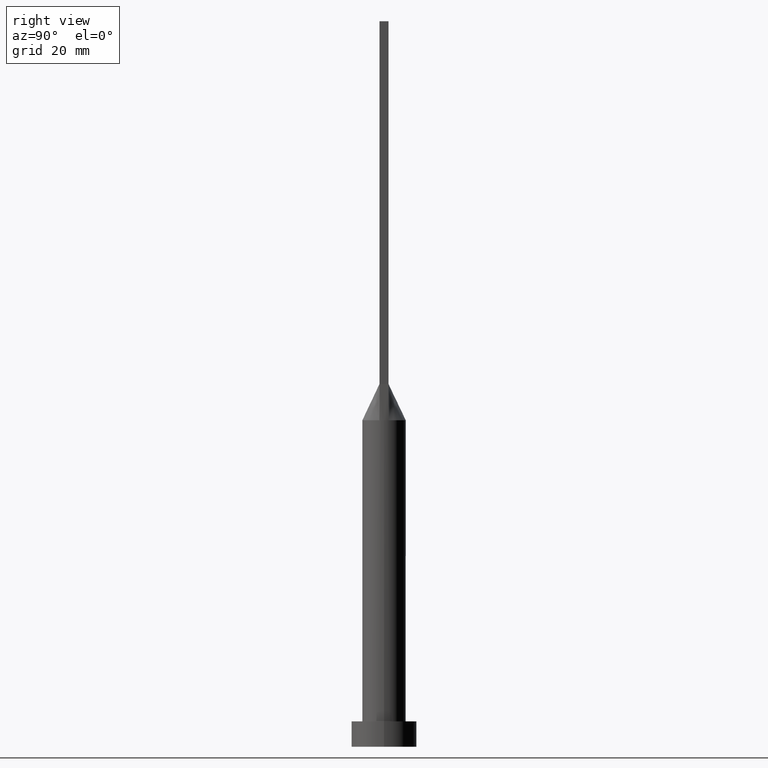
[diagram: clean part render]
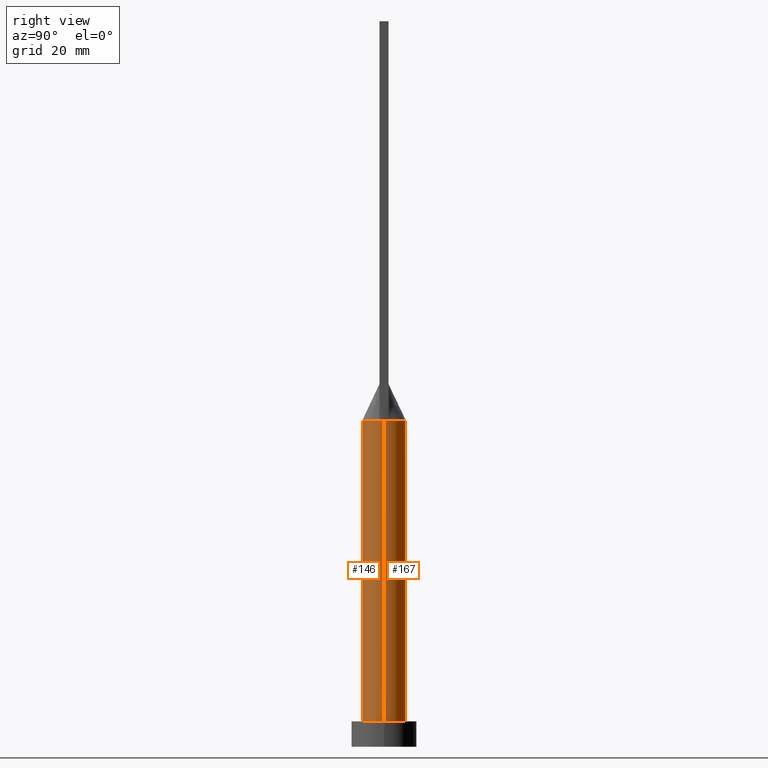
[diagram: same view with one multi-face feature highlighted, each face labeled with its STEP entity id]
A machine part, right view. The highlighted faces form ONE feature: a constant-radius fillet chain: 2 tangent blend faces with common blend radius 6 mm. The faces share edges in the B-rep.
Their STEP definitions:
[1] entity #146 (Cylinder):
#27 = VECTOR ( 'NONE', #119, 1000.000000000000000 ) ;
#31 = CARTESIAN_POINT ( 'NONE',  ( -6.000000000000000888, 0.000000000000000000, 7.000000000000000000 ) ) ;
#33 = DIRECTION ( 'NONE',  ( 1.000000000000000000, 0.000000000000000000, 0.000000000000000000 ) ) ;
#57 = VERTEX_POINT ( 'NONE', #31 ) ;
#60 = ORIENTED_EDGE ( 'NONE', *, *, #367, .F. ) ;
#70 = EDGE_CURVE ( 'NONE', #568, #57, #304, .T. ) ;
#87 = DIRECTION ( 'NONE',  ( -1.000000000000000000, 0.000000000000000000, 0.000000000000000000 ) ) ;
#88 = ORIENTED_EDGE ( 'NONE', *, *, #421, .F. ) ;
#93 = CIRCLE ( 'NONE', #442, 6.000000000000000888 ) ;
#98 = VERTEX_POINT ( 'NONE', #354 ) ;
#119 = DIRECTION ( 'NONE',  ( -0.000000000000000000, -0.000000000000000000, -1.000000000000000000 ) ) ;
#124 = DIRECTION ( 'NONE',  ( 0.000000000000000000, 0.000000000000000000, 1.000000000000000000 ) ) ;
#126 = DIRECTION ( 'NONE',  ( 0.000000000000000000, 0.000000000000000000, 1.000000000000000000 ) ) ;
#129 = CIRCLE ( 'NONE', #474, 6.000000000000000888 ) ;
#146 = ADVANCED_FACE ( 'NONE', ( #508 ), #547, .T. ) ;
#156 = CARTESIAN_POINT ( 'NONE',  ( -6.000000000000000888, 0.000000000000000000, 90.00000000000001421 ) ) ;
#171 = CIRCLE ( 'NONE', #501, 6.000000000000000888 ) ;
#176 = DIRECTION ( 'NONE',  ( 1.000000000000000000, -9.769962616701377556E-15, 0.000000000000000000 ) ) ;
#186 = CARTESIAN_POINT ( 'NONE',  ( 6.000000000000000888, 7.347880794884120722E-16, 7.000000000000000000 ) ) ;
#187 = ORIENTED_EDGE ( 'NONE', *, *, #581, .F. ) ;
#190 = VECTOR ( 'NONE', #346, 1000.000000000000000 ) ;
#191 = CIRCLE ( 'NONE', #532, 6.000000000000000888 ) ;
#193 = ORIENTED_EDGE ( 'NONE', *, *, #70, .T. ) ;
#250 = ORIENTED_EDGE ( 'NONE', *, *, #275, .F. ) ;
#253 = VERTEX_POINT ( 'NONE', #186 ) ;
#262 = DIRECTION ( 'NONE',  ( 1.000000000000000000, 0.000000000000000000, 0.000000000000000000 ) ) ;
#264 = CARTESIAN_POINT ( 'NONE',  ( 0.000000000000000000, 0.000000000000000000, 90.00000000000001421 ) ) ;
#269 = CARTESIAN_POINT ( 'NONE',  ( -6.000000000000000888, -3.688698462745542764E-16, 90.00000000000000000 ) ) ;
#275 = EDGE_CURVE ( 'NONE', #516, #98, #93, .T. ) ;
#280 = DIRECTION ( 'NONE',  ( 0.000000000000000000, 0.000000000000000000, 1.000000000000000000 ) ) ;
#304 = LINE ( 'NONE', #156, #190 ) ;
#305 = CARTESIAN_POINT ( 'NONE',  ( 6.000000000000000888, 6.923844231069229210E-17, 90.00000000000000000 ) ) ;
#346 = DIRECTION ( 'NONE',  ( -0.000000000000000000, -0.000000000000000000, -1.000000000000000000 ) ) ;
#353 = LINE ( 'NONE', #538, #27 ) ;
#354 = CARTESIAN_POINT ( 'NONE',  ( 5.863058287509796074, -1.274577880478293901, 90.00000000000001421 ) ) ;
#367 = EDGE_CURVE ( 'NONE', #372, #253, #353, .T. ) ;
#372 = VERTEX_POINT ( 'NONE', #305 ) ;
#374 = CARTESIAN_POINT ( 'NONE',  ( 0.000000000000000000, 0.000000000000000000, 90.00000000000001421 ) ) ;
#381 = ORIENTED_EDGE ( 'NONE', *, *, #493, .T. ) ;
#421 = EDGE_CURVE ( 'NONE', #568, #516, #171, .T. ) ;
#429 = DIRECTION ( 'NONE',  ( 1.000000000000000000, 0.000000000000000000, 0.000000000000000000 ) ) ;
#442 = AXIS2_PLACEMENT_3D ( 'NONE', #374, #280, #429 ) ;
#449 = CARTESIAN_POINT ( 'NONE',  ( 0.000000000000000000, 0.000000000000000000, 7.000000000000000000 ) ) ;
#461 = DIRECTION ( 'NONE',  ( 0.000000000000000000, 0.000000000000000000, 1.000000000000000000 ) ) ;
#462 = DIRECTION ( 'NONE',  ( -0.000000000000000000, -0.000000000000000000, -1.000000000000000000 ) ) ;
#474 = AXIS2_PLACEMENT_3D ( 'NONE', #264, #126, #176 ) ;
#478 = EDGE_LOOP ( 'NONE', ( #60, #187, #250, #88, #193, #381 ) ) ;
#493 = EDGE_CURVE ( 'NONE', #57, #253, #191, .T. ) ;
#501 = AXIS2_PLACEMENT_3D ( 'NONE', #542, #461, #33 ) ;
#504 = CARTESIAN_POINT ( 'NONE',  ( 0.000000000000000000, 0.000000000000000000, 90.00000000000001421 ) ) ;
#508 = FACE_OUTER_BOUND ( 'NONE', #478, .T. ) ;
#516 = VERTEX_POINT ( 'NONE', #590 ) ;
#532 = AXIS2_PLACEMENT_3D ( 'NONE', #449, #124, #262 ) ;
#538 = CARTESIAN_POINT ( 'NONE',  ( 6.000000000000000888, 7.347880794884120722E-16, 90.00000000000001421 ) ) ;
#542 = CARTESIAN_POINT ( 'NONE',  ( 0.000000000000000000, 0.000000000000000000, 90.00000000000001421 ) ) ;
#547 = CYLINDRICAL_SURFACE ( 'NONE', #598, 6.000000000000000888 ) ;
#568 = VERTEX_POINT ( 'NONE', #269 ) ;
#581 = EDGE_CURVE ( 'NONE', #98, #372, #129, .T. ) ;
#590 = CARTESIAN_POINT ( 'NONE',  ( -5.863065408737084816, -1.274579424051652365, 90.00000000000001421 ) ) ;
#598 = AXIS2_PLACEMENT_3D ( 'NONE', #504, #462, #87 ) ;
[2] entity #167 (Cylinder):
#11 = ORIENTED_EDGE ( 'NONE', *, *, #530, .F. ) ;
#21 = CARTESIAN_POINT ( 'NONE',  ( 3.037647739454305995, 5.231880992812856235, 90.00000000000002842 ) ) ;
#26 = CARTESIAN_POINT ( 'NONE',  ( 5.038190104264874236, 3.311355329404293002, 90.00000000000004263 ) ) ;
#27 = VECTOR ( 'NONE', #119, 1000.000000000000000 ) ;
#31 = CARTESIAN_POINT ( 'NONE',  ( -6.000000000000000888, 0.000000000000000000, 7.000000000000000000 ) ) ;
#37 = CARTESIAN_POINT ( 'NONE',  ( -0.4029827085191223790, 5.999999999999998224, 90.00000000000002842 ) ) ;
#39 = DIRECTION ( 'NONE',  ( 0.000000000000000000, 0.000000000000000000, 1.000000000000000000 ) ) ;
#42 = CARTESIAN_POINT ( 'NONE',  ( -5.759267569818392829, 1.752014689090956256, 90.00000000000002842 ) ) ;
#43 = VERTEX_POINT ( 'NONE', #543 ) ;
#46 = CYLINDRICAL_SURFACE ( 'NONE', #121, 6.000000000000000888 ) ;
#51 = DIRECTION ( 'NONE',  ( 1.000000000000000000, 0.000000000000000000, 0.000000000000000000 ) ) ;
#57 = VERTEX_POINT ( 'NONE', #31 ) ;
#70 = EDGE_CURVE ( 'NONE', #568, #57, #304, .T. ) ;
#77 = CARTESIAN_POINT ( 'NONE',  ( 5.863058183536806744, 1.274577865986262326, 90.00000000000001421 ) ) ;
#79 = CARTESIAN_POINT ( 'NONE',  ( 5.586898165904734093, 2.266054396544147309, 90.00000000000002842 ) ) ;
#85 = CARTESIAN_POINT ( 'NONE',  ( 0.000000000000000000, 0.000000000000000000, 90.00000000000001421 ) ) ;
#90 = DIRECTION ( 'NONE',  ( -0.000000000000000000, -0.000000000000000000, -1.000000000000000000 ) ) ;
#97 = CARTESIAN_POINT ( 'NONE',  ( 0.000000000000000000, 0.000000000000000000, 90.00000000000001421 ) ) ;
#108 = EDGE_CURVE ( 'NONE', #43, #540, #168, .T. ) ;
#109 = ORIENTED_EDGE ( 'NONE', *, *, #70, .F. ) ;
#119 = DIRECTION ( 'NONE',  ( -0.000000000000000000, -0.000000000000000000, -1.000000000000000000 ) ) ;
#121 = AXIS2_PLACEMENT_3D ( 'NONE', #85, #90, #270 ) ;
#140 = EDGE_LOOP ( 'NONE', ( #11, #325, #292, #109, #391, #272 ) ) ;
#156 = CARTESIAN_POINT ( 'NONE',  ( -6.000000000000000888, 0.000000000000000000, 90.00000000000001421 ) ) ;
#159 = AXIS2_PLACEMENT_3D ( 'NONE', #172, #406, #551 ) ;
#167 = ADVANCED_FACE ( 'NONE', ( #545 ), #46, .T. ) ;
#168 = B_SPLINE_CURVE_WITH_KNOTS ( 'NONE', 3,
 ( #77, #255, #79, #26, #539, #263, #21, #537, #306, #206, #265, #37, #225, #453, #218, #369, #412, #312, #271, #459, #42, #174 ),
 .UNSPECIFIED., .F., .F.,
 ( 4, 2, 2, 2, 2, 2, 2, 2, 2, 2, 4 ),
 ( 0.000000000000000000, 0.1249999999999999722, 0.2499999999999999445, 0.3749999999999999445, 0.4374999999999999445, 0.4999999999999998890, 0.5624999999999998890, 0.6249999999999998890, 0.7499999999999997780, 0.8749999999999998890, 1.000000000000000000 ),
 .UNSPECIFIED. ) ;
#172 = CARTESIAN_POINT ( 'NONE',  ( 0.000000000000000000, 0.000000000000000000, 90.00000000000001421 ) ) ;
#174 = CARTESIAN_POINT ( 'NONE',  ( -5.863058287509749888, 1.274577880478287017, 90.00000000000001421 ) ) ;
#186 = CARTESIAN_POINT ( 'NONE',  ( 6.000000000000000888, 7.347880794884120722E-16, 7.000000000000000000 ) ) ;
#190 = VECTOR ( 'NONE', #346, 1000.000000000000000 ) ;
#206 = CARTESIAN_POINT ( 'NONE',  ( 0.8058840496048939039, 5.959001506938069070, 90.00000000000002842 ) ) ;
#218 = CARTESIAN_POINT ( 'NONE',  ( -1.966519853258818173, 5.681792876789067748, 90.00000000000001421 ) ) ;
#222 = EDGE_CURVE ( 'NONE', #540, #568, #589, .T. ) ;
#225 = CARTESIAN_POINT ( 'NONE',  ( -0.8058840496048931268, 5.959001506938069070, 90.00000000000001421 ) ) ;
#253 = VERTEX_POINT ( 'NONE', #186 ) ;
#255 = CARTESIAN_POINT ( 'NONE',  ( 5.759267569818392829, 1.752014689090955590, 90.00000000000002842 ) ) ;
#263 = CARTESIAN_POINT ( 'NONE',  ( 3.660567483996337579, 4.804269179125218336, 90.00000000000002842 ) ) ;
#265 = CARTESIAN_POINT ( 'NONE',  ( 0.4029827085191226566, 5.999999999999999112, 90.00000000000002842 ) ) ;
#267 = CIRCLE ( 'NONE', #159, 6.000000000000000888 ) ;
#269 = CARTESIAN_POINT ( 'NONE',  ( -6.000000000000000888, -3.688698462745542764E-16, 90.00000000000000000 ) ) ;
#270 = DIRECTION ( 'NONE',  ( -1.000000000000000000, 0.000000000000000000, 0.000000000000000000 ) ) ;
#271 = CARTESIAN_POINT ( 'NONE',  ( -5.038190104264874236, 3.311355329404293446, 90.00000000000001421 ) ) ;
#272 = ORIENTED_EDGE ( 'NONE', *, *, #108, .F. ) ;
#277 = AXIS2_PLACEMENT_3D ( 'NONE', #97, #340, #51 ) ;
#292 = ORIENTED_EDGE ( 'NONE', *, *, #440, .T. ) ;
#304 = LINE ( 'NONE', #156, #190 ) ;
#305 = CARTESIAN_POINT ( 'NONE',  ( 6.000000000000000888, 6.923844231069229210E-17, 90.00000000000000000 ) ) ;
#306 = CARTESIAN_POINT ( 'NONE',  ( 1.587717880441007479, 5.799853445840305710, 90.00000000000000000 ) ) ;
#309 = DIRECTION ( 'NONE',  ( 1.000000000000000000, 0.000000000000000000, 0.000000000000000000 ) ) ;
#312 = CARTESIAN_POINT ( 'NONE',  ( -4.659826596530312948, 3.842755878357679844, 90.00000000000001421 ) ) ;
#316 = AXIS2_PLACEMENT_3D ( 'NONE', #546, #39, #309 ) ;
#325 = ORIENTED_EDGE ( 'NONE', *, *, #367, .T. ) ;
#340 = DIRECTION ( 'NONE',  ( 0.000000000000000000, 0.000000000000000000, 1.000000000000000000 ) ) ;
#346 = DIRECTION ( 'NONE',  ( -0.000000000000000000, -0.000000000000000000, -1.000000000000000000 ) ) ;
#353 = LINE ( 'NONE', #538, #27 ) ;
#367 = EDGE_CURVE ( 'NONE', #372, #253, #353, .T. ) ;
#369 = CARTESIAN_POINT ( 'NONE',  ( -3.037647739454304663, 5.231880992812857123, 90.00000000000007105 ) ) ;
#372 = VERTEX_POINT ( 'NONE', #305 ) ;
#391 = ORIENTED_EDGE ( 'NONE', *, *, #222, .F. ) ;
#406 = DIRECTION ( 'NONE',  ( 0.000000000000000000, 0.000000000000000000, 1.000000000000000000 ) ) ;
#412 = CARTESIAN_POINT ( 'NONE',  ( -3.660567483996338023, 4.804269179125219225, 90.00000000000005684 ) ) ;
#424 = CIRCLE ( 'NONE', #316, 6.000000000000000888 ) ;
#440 = EDGE_CURVE ( 'NONE', #253, #57, #424, .T. ) ;
#453 = CARTESIAN_POINT ( 'NONE',  ( -1.587717880441007035, 5.799853445840308375, 90.00000000000001421 ) ) ;
#459 = CARTESIAN_POINT ( 'NONE',  ( -5.586898165904732316, 2.266054396544148197, 90.00000000000002842 ) ) ;
#530 = EDGE_CURVE ( 'NONE', #372, #43, #267, .T. ) ;
#537 = CARTESIAN_POINT ( 'NONE',  ( 1.966519853258819062, 5.681792876789066860, 90.00000000000002842 ) ) ;
#538 = CARTESIAN_POINT ( 'NONE',  ( 6.000000000000000888, 7.347880794884120722E-16, 90.00000000000001421 ) ) ;
#539 = CARTESIAN_POINT ( 'NONE',  ( 4.659826596530313836, 3.842755878357678068, 90.00000000000002842 ) ) ;
#540 = VERTEX_POINT ( 'NONE', #592 ) ;
#543 = CARTESIAN_POINT ( 'NONE',  ( 5.863058183536806744, 1.274577865986262326, 90.00000000000001421 ) ) ;
#545 = FACE_OUTER_BOUND ( 'NONE', #140, .T. ) ;
#546 = CARTESIAN_POINT ( 'NONE',  ( 0.000000000000000000, 0.000000000000000000, 7.000000000000000000 ) ) ;
#551 = DIRECTION ( 'NONE',  ( 1.000000000000000000, 0.000000000000000000, 0.000000000000000000 ) ) ;
#568 = VERTEX_POINT ( 'NONE', #269 ) ;
#589 = CIRCLE ( 'NONE', #277, 6.000000000000000888 ) ;
#592 = CARTESIAN_POINT ( 'NONE',  ( -5.863058287509749888, 1.274577880478287017, 90.00000000000001421 ) ) ;